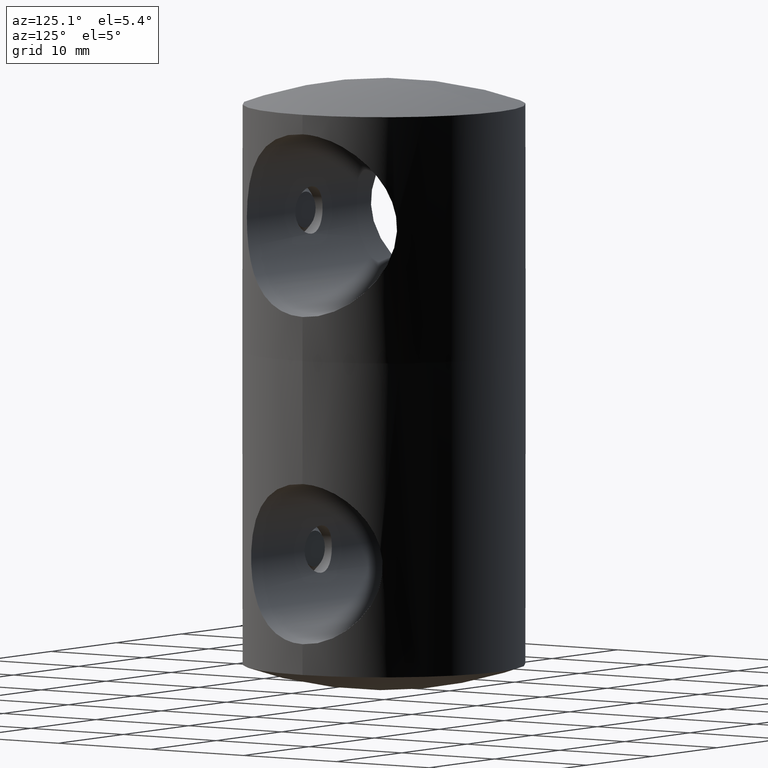
[diagram: clean part render]
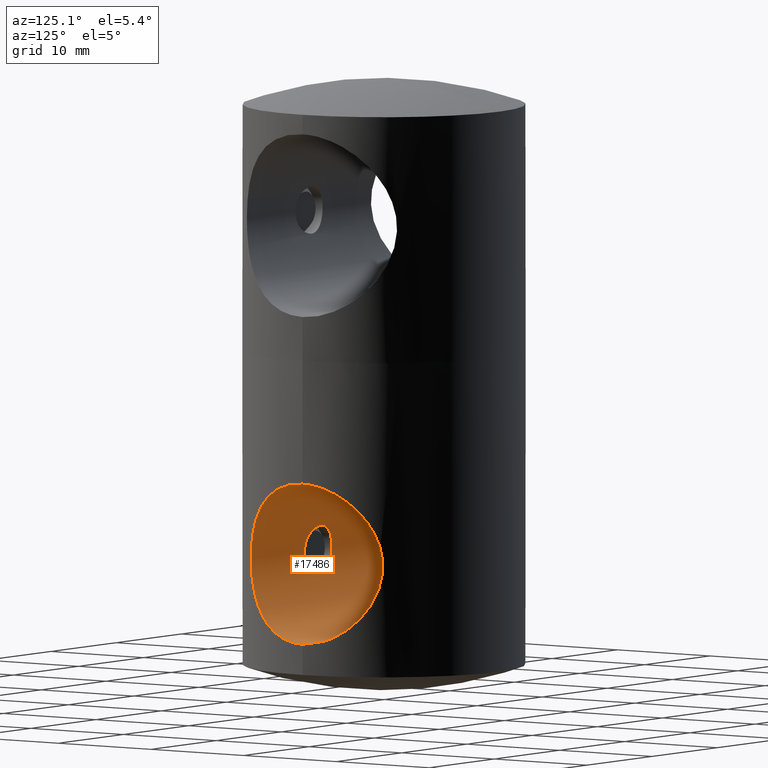
[diagram: same view with one face highlighted and labeled with its STEP entity id]
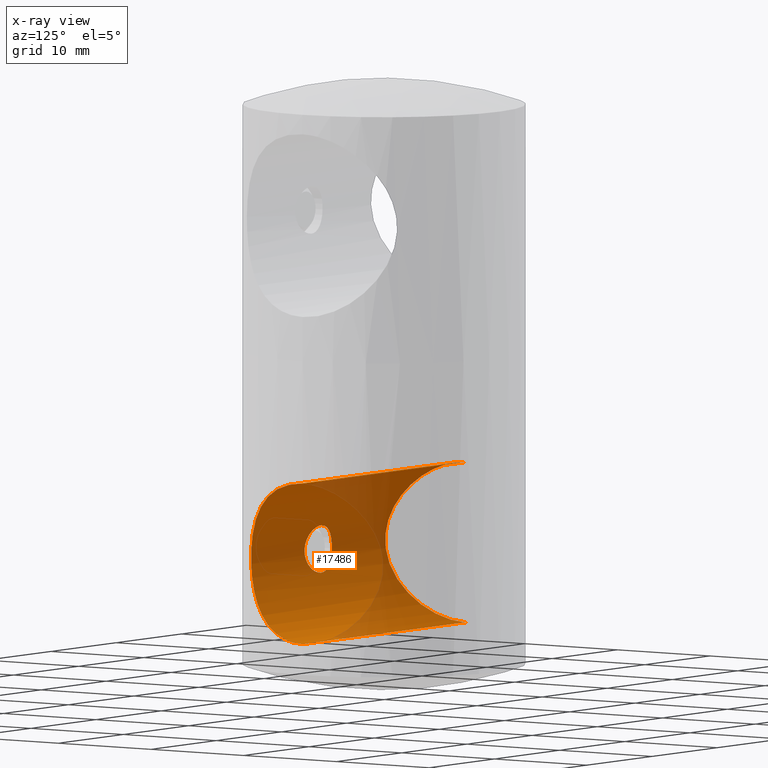
[diagram: x-ray of the same camera — body ghosted, the highlighted face saturated]
A machine part, auxiliary view. The second image highlights one B-rep face of the part: STEP entity #17486.
The next image is the same camera in x-ray: the body ghosted, the highlighted face saturated — about 30% of this face is hidden behind the body in this view.
In plain terms, the highlighted cylindrical surface (partial cylindrical patch) has radius 7.1 mm, axis along (-1, -0, 0).
Its self-contained STEP definition (entity closure, byte-faithful):
#394 = CARTESIAN_POINT ( 'NONE',  ( 1.281988807091904103, -6.901521267428415207, 4.668876199059269538 ) ) ;
#404 = EDGE_CURVE ( 'NONE', #6697, #6292, #17042, .T. ) ;
#415 = CARTESIAN_POINT ( 'NONE',  ( -10.54080125387373634, -6.722015453373489713, 0.6683817502012835421 ) ) ;
#478 = CARTESIAN_POINT ( 'NONE',  ( -12.47240342699863547, -0.9512168273055786605, -4.051728049087748751 ) ) ;
#538 = CARTESIAN_POINT ( 'NONE',  ( -12.36157828789706414, -1.869096526884924225, 9.853610966340577093 ) ) ;
#628 = CARTESIAN_POINT ( 'NONE',  ( 0.5480556957764938231, -6.803091638451528311, 5.031932424339646381 ) ) ;
#936 = CARTESIAN_POINT ( 'NONE',  ( -1.992182045552697289, -7.068674974145548795, 3.678561481748686468 ) ) ;
#1025 = CARTESIAN_POINT ( 'NONE',  ( 10.59351820108908093, -6.636142668883755036, 0.4652433916719400098 ) ) ;
#1094 = CARTESIAN_POINT ( 'NONE',  ( 11.16027666235574323, -5.637531711305975968, -1.340161849452324416 ) ) ;
#1269 = CARTESIAN_POINT ( 'NONE',  ( 10.88816703618159565, -6.146595381488632270, 6.582789047978076624 ) ) ;
#1444 = CARTESIAN_POINT ( 'NONE',  ( 0.9321274210667228610, -6.844930146303196850, 4.886774365685632837 ) ) ;
#1733 = CARTESIAN_POINT ( 'NONE',  ( -10.89076193942644544, -6.136548808116676135, 6.578493631343571124 ) ) ;
#1778 = CARTESIAN_POINT ( 'NONE',  ( 2.100059506846965629, -7.100017600615201374, 3.136954343613682195 ) ) ;
#1859 = CARTESIAN_POINT ( 'NONE',  ( -10.76464359171547258, -6.355184909898125234, 6.174030986768685558 ) ) ;
#1898 = CARTESIAN_POINT ( 'NONE',  ( 0.1395997681101468213, -6.782329983125267248, 0.9000000000000131228 ) ) ;
#2175 = FACE_OUTER_BOUND ( 'NONE', #3821, .T. ) ;
#2248 = CARTESIAN_POINT ( 'NONE',  ( -0.5469973674663455299, -6.803016253193344909, 0.9678171962360141434 ) ) ;
#2306 = CARTESIAN_POINT ( 'NONE',  ( -1.820735158076336679, -7.022085757748140367, 4.055216121672385654 ) ) ;
#2365 = CARTESIAN_POINT ( 'NONE',  ( 4.258140933517616797E-16, -6.782329983125269912, 0.9000000000000130118 ) ) ;
#2410 = CARTESIAN_POINT ( 'NONE',  ( 10.35379304955138480, -7.003725121456041869, 4.188724512186769111 ) ) ;
#2477 = CARTESIAN_POINT ( 'NONE',  ( 11.58512768093194367, -4.707102817139629636, 8.334627346252799995 ) ) ;
#2536 = CARTESIAN_POINT ( 'NONE',  ( 11.51408151635098598, -4.868944799639089993, -2.172524930702216306 ) ) ;
#2593 = CARTESIAN_POINT ( 'NONE',  ( 10.76119357562656198, -6.363243337331821792, 6.183007523073617229 ) ) ;
#2725 = CARTESIAN_POINT ( 'NONE',  ( 12.44547036346077640, -1.189197617727914880, -4.003660064757344372 ) ) ;
#2783 = CARTESIAN_POINT ( 'NONE',  ( 11.78780696279485340, -4.163804789402313133, -2.755402572058839983 ) ) ;
#2931 = AXIS2_PLACEMENT_3D ( 'NONE', #12430, #16759, #13945 ) ;
#3195 = CARTESIAN_POINT ( 'NONE',  ( -11.30314907400740054, -5.339918604441927563, -1.684778279553569513 ) ) ;
#3237 = CARTESIAN_POINT ( 'NONE',  ( 2.086198619596722814, -7.095883073133014918, 3.277004660160204530 ) ) ;
#3262 = CARTESIAN_POINT ( 'NONE',  ( -10.41557569167954433, -6.911509236011336377, 4.642112633211111117 ) ) ;
#3321 = CARTESIAN_POINT ( 'NONE',  ( -12.09474588327909217, -3.187496164584715519, -3.361299522317986899 ) ) ;
#3366 = CARTESIAN_POINT ( 'NONE',  ( 1.833046757503978830, -7.024930632959328847, 4.061312134530105311 ) ) ;
#3390 = CARTESIAN_POINT ( 'NONE',  ( -12.50000000000000178, -0.4805659640073316474, -4.099999999999998757 ) ) ;
#3405 = VERTEX_POINT ( 'NONE', #11887 ) ;
#3449 = CARTESIAN_POINT ( 'NONE',  ( -11.37402628047061626, -5.187679897919515781, -1.852757224968614835 ) ) ;
#3541 = VERTEX_POINT ( 'NONE', #7582 ) ;
#3587 = CARTESIAN_POINT ( 'NONE',  ( 1.055092020236857886, -6.862996406412092298, 4.820830551733999769 ) ) ;
#3592 = CARTESIAN_POINT ( 'NONE',  ( 2.572367778229198205E-16, -6.782329983125269912, 5.099999999999988987 ) ) ;
#3652 = CARTESIAN_POINT ( 'NONE',  ( -2.086030353088639711, -7.095833753745439232, 3.278057642428634733 ) ) ;
#3660 = DIRECTION ( 'NONE',  ( 1.000000000000000000, -0.000000000000000000, -0.000000000000000000 ) ) ;
#3710 = CARTESIAN_POINT ( 'NONE',  ( -2.032091325124188330, -7.080164488232665754, 3.547214339062039645 ) ) ;
#3821 = EDGE_LOOP ( 'NONE', ( #17231, #9303, #12486, #10499 ) ) ;
#3877 = CARTESIAN_POINT ( 'NONE',  ( 10.28797178943786861, -7.099833554373474520, 3.244276039956524471 ) ) ;
#3932 = CARTESIAN_POINT ( 'NONE',  ( 10.29656404782429391, -7.087426699821465448, 3.484288876311453897 ) ) ;
#4249 = CARTESIAN_POINT ( 'NONE',  ( 12.49299174562365344, -0.4811991486314979860, -4.087682115753313639 ) ) ;
#4768 = ORIENTED_EDGE ( 'NONE', *, *, #404, .T. ) ;
#4832 = CARTESIAN_POINT ( 'NONE',  ( -12.28868335539654311, -2.330508779459669721, -3.722722085639619038 ) ) ;
#4869 = CARTESIAN_POINT ( 'NONE',  ( 1.677740173551896197, -6.984228621925074876, 1.707972212363771725 ) ) ;
#4894 = CARTESIAN_POINT ( 'NONE',  ( -12.47236506100288267, -0.9511355239451575461, 10.05165719732110396 ) ) ;
#5086 = CARTESIAN_POINT ( 'NONE',  ( -1.389055288179732672, -6.922473353629668757, 1.419159496579968316 ) ) ;
#5105 = VECTOR ( 'NONE', #3660, 1000.000000000000000 ) ;
#5203 = CARTESIAN_POINT ( 'NONE',  ( -1.581386642541452225, -6.963606935089436512, 4.388520072631406421 ) ) ;
#5360 = CARTESIAN_POINT ( 'NONE',  ( 10.70346527864367125, -6.457309689604065817, 0.03916698245445875831 ) ) ;
#5425 = CARTESIAN_POINT ( 'NONE',  ( 11.72285358696202984, -4.357488413051601839, 8.624561647930455877 ) ) ;
#5543 = CARTESIAN_POINT ( 'NONE',  ( 11.37442896416548521, -5.186797260141186250, 7.853699686406227620 ) ) ;
#5670 = CARTESIAN_POINT ( 'NONE',  ( 12.49999999999999289, -0.2397798003476021289, -4.099999999999997868 ) ) ;
#6080 = CARTESIAN_POINT ( 'NONE',  ( -10.32144769786893690, -7.051980222211310156, 3.949499986322636769 ) ) ;
#6083 = B_SPLINE_CURVE_WITH_KNOTS ( 'NONE', 3,
 ( #11296, #9782, #14155, #16857, #9901, #17026, #16787, #5425, #2477, #5543, #15598, #15475, #6951, #1269, #2593, #18229, #7016, #2410, #12449, #3932, #3877, #13972, #13907, #15355, #6764, #9651, #1025, #5360, #8275, #18287, #9720, #1094, #11164, #2536, #15648, #11409, #2783, #14273, #9954, #7078, #11354, #17094, #12762, #2725, #12829, #4249, #5670, #18537 ),
 .UNSPECIFIED., .F., .F.,
 ( 4, 2, 2, 2, 2, 2, 2, 2, 2, 2, 2, 2, 2, 2, 2, 2, 2, 2, 2, 2, 2, 2, 2, 4 ),
 ( 0.02270891682282253146, 0.02412525192292015383, 0.02554158702301777967, 0.02695792212311540204, 0.02837425722321302787, 0.02908242477326184253, 0.02979059232331065718, 0.03120692742340828996, 0.03262326252350591926, 0.03333143007355473392, 0.03403959762360354857, 0.03545593272370117788, 0.03616410027374999947, 0.03687226782379881412, 0.03758043537384762878, 0.03828860292389645037, 0.03970493802399407968, 0.04041310557404290127, 0.04112127312409171592, 0.04253760822418935217, 0.04324577577423817376, 0.04395394332428698841, 0.04466211087433580307, 0.04537027842438462466 ),
 .UNSPECIFIED. ) ;
#6124 = CARTESIAN_POINT ( 'NONE',  ( 1.992223577268341650, -7.068688158173163316, 3.678348128692244146 ) ) ;
#6146 = CARTESIAN_POINT ( 'NONE',  ( -12.39391654726004610, -1.641484044854723878, 9.911632378378328667 ) ) ;
#6281 = CARTESIAN_POINT ( 'NONE',  ( -11.16254692090160106, -5.633085906007538668, 7.346039136242898948 ) ) ;
#6292 = VERTEX_POINT ( 'NONE', #6329 ) ;
#6328 = CARTESIAN_POINT ( 'NONE',  ( 0.2767002672360202031, -6.786639613669463778, 0.9137800000060853911 ) ) ;
#6329 = CARTESIAN_POINT ( 'NONE',  ( 4.258140933517616797E-16, -6.782329983125269912, 0.9000000000000130118 ) ) ;
#6350 = CARTESIAN_POINT ( 'NONE',  ( -10.32191336193627151, -7.051303418075906215, 2.045609312314089046 ) ) ;
#6394 = CARTESIAN_POINT ( 'NONE',  ( 2.086436316188144513, -7.095952606258267181, 2.724417482715823180 ) ) ;
#6483 = CARTESIAN_POINT ( 'NONE',  ( -1.833936259008382308, -7.025175697124266705, 1.940862697061279007 ) ) ;
#6601 = CARTESIAN_POINT ( 'NONE',  ( -0.6810386160973637137, -6.815278427084284552, 1.008773254844246958 ) ) ;
#6697 = VERTEX_POINT ( 'NONE', #12215 ) ;
#6764 = CARTESIAN_POINT ( 'NONE',  ( 10.45369377733143779, -6.853982002503377302, 1.132369744962723024 ) ) ;
#6856 = EDGE_CURVE ( 'NONE', #3541, #7894, #16755, .T. ) ;
#6951 = CARTESIAN_POINT ( 'NONE',  ( 11.09166530797232575, -5.765905370694642151, 7.149227433234639051 ) ) ;
#7016 = CARTESIAN_POINT ( 'NONE',  ( 10.44818337300496047, -6.862816372559792377, 4.879541861113493972 ) ) ;
#7078 = CARTESIAN_POINT ( 'NONE',  ( 12.23912789366317000, -2.549971958430642616, -3.630395001688509371 ) ) ;
#7493 = CARTESIAN_POINT ( 'NONE',  ( -12.49999999999999822, -0.4809610958689505278, 10.10000000000000320 ) ) ;
#7552 = CARTESIAN_POINT ( 'NONE',  ( -10.70503448327140994, -6.454712516760542584, 5.966505142884481749 ) ) ;
#7582 = CARTESIAN_POINT ( 'NONE',  ( -12.49999999999999822, 8.964901825575159134E-16, 10.10000000000000320 ) ) ;
#7590 = CARTESIAN_POINT ( 'NONE',  ( 1.678204323626109939, -6.984300454771114275, 4.291832388938202847 ) ) ;
#7614 = CARTESIAN_POINT ( 'NONE',  ( -12.28506725716602688, -2.319323625872139250, 9.714629030946417387 ) ) ;
#7740 = CARTESIAN_POINT ( 'NONE',  ( -10.45442333798881940, -6.852873825890775095, 4.871768109421389603 ) ) ;
#7776 = CARTESIAN_POINT ( 'NONE',  ( 0.6799541415999094118, -6.815162842084114381, 1.008374454452571456 ) ) ;
#7822 = LINE ( 'NONE', #10767, #5105 ) ;
#7894 = VERTEX_POINT ( 'NONE', #12594 ) ;
#8050 = CARTESIAN_POINT ( 'NONE',  ( -2.100011073309085319, -7.100003275204086250, 2.861761410671590067 ) ) ;
#8275 = CARTESIAN_POINT ( 'NONE',  ( 10.76299649604914599, -6.357972462635660627, -0.1684570197645891276 ) ) ;
#8949 = ORIENTED_EDGE ( 'NONE', *, *, #18257, .T. ) ;
#9059 = CARTESIAN_POINT ( 'NONE',  ( -11.16189758074910010, -5.629205280336353034, -1.332888891083549243 ) ) ;
#9118 = CARTESIAN_POINT ( 'NONE',  ( -11.58671775153814920, -4.703273353215211117, 8.338114052707290114 ) ) ;
#9183 = CARTESIAN_POINT ( 'NONE',  ( -12.24072011514203950, -2.542285523396220270, 9.633329130939637608 ) ) ;
#9303 = ORIENTED_EDGE ( 'NONE', *, *, #6856, .T. ) ;
#9377 = CARTESIAN_POINT ( 'NONE',  ( -0.9341590504404773121, -6.845207051184391212, 1.114225778169737557 ) ) ;
#9443 = CARTESIAN_POINT ( 'NONE',  ( -1.055170594633208170, -6.863006187222548959, 4.820798878250631248 ) ) ;
#9597 = CARTESIAN_POINT ( 'NONE',  ( 2.572367778229198205E-16, -6.782329983125269912, 5.099999999999988987 ) ) ;
#9651 = CARTESIAN_POINT ( 'NONE',  ( 10.54309940824726510, -6.715641276056546261, 0.6836938217289960651 ) ) ;
#9720 = CARTESIAN_POINT ( 'NONE',  ( 10.95590503741818544, -6.019886174600851625, -0.7713608437412844410 ) ) ;
#9775 = CARTESIAN_POINT ( 'NONE',  ( -12.49999999999999822, 2.604222703371427672E-15, 10.10000000000000142 ) ) ;
#9782 = CARTESIAN_POINT ( 'NONE',  ( 12.50000000000000000, -0.4799539051028655079, 10.10000000000000675 ) ) ;
#9813 = EDGE_CURVE ( 'NONE', #3405, #3541, #14210, .T. ) ;
#9901 = CARTESIAN_POINT ( 'NONE',  ( 12.28868556496928832, -2.330455522349837771, 9.722723993875808546 ) ) ;
#9954 = CARTESIAN_POINT ( 'NONE',  ( 12.09282248704221985, -3.195008394635596716, -3.357664730622600402 ) ) ;
#10371 = CARTESIAN_POINT ( 'NONE',  ( -12.49999999999999822, 1.674654898630422701E-15, -4.099999999999996980 ) ) ;
#10488 = CARTESIAN_POINT ( 'NONE',  ( -10.28795124725935750, -7.099863319915303173, 2.517279186960944326 ) ) ;
#10499 = ORIENTED_EDGE ( 'NONE', *, *, #15801, .F. ) ;
#10653 = CARTESIAN_POINT ( 'NONE',  ( 1.388981580019640116, -6.922458318254848031, 1.419092936362281732 ) ) ;
#10757 = CARTESIAN_POINT ( 'NONE',  ( -0.1395614199648952947, -6.782329983125268136, 0.9000000000000127898 ) ) ;
#10767 = CARTESIAN_POINT ( 'NONE',  ( -12.49999999999999822, 1.734723475976807094E-15, -4.099999999999996980 ) ) ;
#10822 = CARTESIAN_POINT ( 'NONE',  ( -1.054311539120120766, -6.862869708615346731, 1.178680987641753886 ) ) ;
#10883 = CARTESIAN_POINT ( 'NONE',  ( -1.991719944751145999, -7.068549439712469962, 2.320422801422865167 ) ) ;
#10935 = CARTESIAN_POINT ( 'NONE',  ( -0.5527069991460158427, -6.800171240276227991, 5.044411981709019166 ) ) ;
#11164 = CARTESIAN_POINT ( 'NONE',  ( 11.30260226496380938, -5.350137245759826854, -1.689624924682959994 ) ) ;
#11296 = CARTESIAN_POINT ( 'NONE',  ( 12.49999999999999822, 2.427298681491636240E-15, 10.10000000000000320 ) ) ;
#11354 = CARTESIAN_POINT ( 'NONE',  ( 12.28355408712935493, -2.327268730588583079, -3.711861126518972487 ) ) ;
#11409 = CARTESIAN_POINT ( 'NONE',  ( 11.72154789661120056, -4.346392963122590380, -2.618830262060698910 ) ) ;
#11855 = CARTESIAN_POINT ( 'NONE',  ( -11.72326304938611763, -4.356324323330960091, -2.625398339974434947 ) ) ;
#11887 = CARTESIAN_POINT ( 'NONE',  ( -12.49999999999999822, 1.674654898630422701E-15, -4.099999999999996980 ) ) ;
#11920 = CARTESIAN_POINT ( 'NONE',  ( -10.95760019053421530, -6.016811922509468502, 6.776294816179190050 ) ) ;
#11959 = CARTESIAN_POINT ( 'NONE',  ( 2.032208412861615798, -7.080197590608633185, 2.452924875327062715 ) ) ;
#12013 = CARTESIAN_POINT ( 'NONE',  ( 4.258140933517616797E-16, -6.782329983125269912, 0.9000000000000130118 ) ) ;
#12033 = CARTESIAN_POINT ( 'NONE',  ( -10.88734605281069001, -6.148078400945674815, -0.5803858894587281547 ) ) ;
#12215 = CARTESIAN_POINT ( 'NONE',  ( 2.572367778229198205E-16, -6.782329983125269912, 5.099999999999988987 ) ) ;
#12245 = CARTESIAN_POINT ( 'NONE',  ( -1.669146556953584604, -6.984315435452783660, 4.281603429576624542 ) ) ;
#12430 = CARTESIAN_POINT ( 'NONE',  ( -12.49999999999999822, 1.734723475976807094E-15, 3.000000000000002665 ) ) ;
#12449 = CARTESIAN_POINT ( 'NONE',  ( 10.32948239257338408, -7.039363743819929908, 3.955777705983288151 ) ) ;
#12486 = ORIENTED_EDGE ( 'NONE', *, *, #13087, .T. ) ;
#12548 = CARTESIAN_POINT ( 'NONE',  ( 0.2769326297696691475, -6.786632631646359215, 5.086246088390508291 ) ) ;
#12594 = CARTESIAN_POINT ( 'NONE',  ( 12.49999999999999822, 2.427298681491636240E-15, 10.10000000000000320 ) ) ;
#12762 = CARTESIAN_POINT ( 'NONE',  ( 12.39271462522872547, -1.650620416519905875, -3.909478816615207020 ) ) ;
#12829 = CARTESIAN_POINT ( 'NONE',  ( 12.46569958972208347, -0.9553685758214875978, -4.039464559108589370 ) ) ;
#13087 = EDGE_CURVE ( 'NONE', #7894, #16380, #6083, .T. ) ;
#13113 = CARTESIAN_POINT ( 'NONE',  ( 0.1375483942688937311, -6.782329983125271688, 5.099999999999988987 ) ) ;
#13234 = CARTESIAN_POINT ( 'NONE',  ( -11.98032867455219552, -3.589032839019615118, 9.143070526304031276 ) ) ;
#13362 = CARTESIAN_POINT ( 'NONE',  ( -12.09508519001899174, -3.186329035902474072, 9.361948714217559697 ) ) ;
#13413 = CARTESIAN_POINT ( 'NONE',  ( -12.36744064349518268, -1.874052461373486134, -3.864372462422195564 ) ) ;
#13458 = CARTESIAN_POINT ( 'NONE',  ( 0.9338677365261154328, -6.845160033101458374, 1.114051697677916009 ) ) ;
#13487 = CARTESIAN_POINT ( 'NONE',  ( -10.76036465851576018, -6.364631587517303402, -0.1801572560745127449 ) ) ;
#13534 = CARTESIAN_POINT ( 'NONE',  ( 1.833939604744975416, -7.025179057592409571, 1.941027426218128626 ) ) ;
#13628 = CARTESIAN_POINT ( 'NONE',  ( -1.677758846562766637, -6.984234081099411462, 1.708005256870581690 ) ) ;
#13692 = CARTESIAN_POINT ( 'NONE',  ( -1.387567061767733589, -6.922165859333327731, 4.582222915523000317 ) ) ;
#13759 = CARTESIAN_POINT ( 'NONE',  ( -2.099988913232677223, -7.099996720815309637, 3.138574816976698934 ) ) ;
#13901 = DIRECTION ( 'NONE',  ( 1.000000000000000000, -0.000000000000000000, -0.000000000000000000 ) ) ;
#13907 = CARTESIAN_POINT ( 'NONE',  ( 10.32092856185195373, -7.052734923715453519, 2.055955103283547469 ) ) ;
#13945 = DIRECTION ( 'NONE',  ( 0.000000000000000000, 0.000000000000000000, -1.000000000000000000 ) ) ;
#13972 = CARTESIAN_POINT ( 'NONE',  ( 10.28763066194222375, -7.100327846217659555, 2.526108018380252229 ) ) ;
#14155 = CARTESIAN_POINT ( 'NONE',  ( 12.47241159761730955, -0.9511822130778515572, 10.05174284442395205 ) ) ;
#14210 = B_SPLINE_CURVE_WITH_KNOTS ( 'NONE', 3,
 ( #10371, #3390, #478, #13413, #4832, #3321, #17746, #11855, #14936, #3449, #3195, #9059, #16117, #12033, #13487, #415, #17672, #6350, #10488, #14678, #6080, #3262, #7740, #14873, #14736, #7552, #1859, #1733, #11920, #6281, #17557, #9118, #16304, #13234, #13362, #9183, #7614, #538, #6146, #4894, #7493, #17495 ),
 .UNSPECIFIED., .F., .F.,
 ( 4, 2, 2, 2, 2, 2, 2, 2, 2, 2, 2, 2, 2, 2, 2, 2, 2, 2, 2, 2, 4 ),
 ( 5.821725085930358525E-20, 0.001419307301426409517, 0.002838614602852819035, 0.004257921904279229203, 0.005677229205705638070, 0.006386882856418842069, 0.007096536507132045202, 0.008515843808558454936, 0.009935151109984864670, 0.01135445841141127440, 0.01277376571283768414, 0.01348341936355088901, 0.01419307301426409214, 0.01490272666497729874, 0.01561238031569050361, 0.01703168761711690987, 0.01845099491854331614, 0.01987030221996972240, 0.02057995587068292206, 0.02128960952139612520, 0.02270891682282252799 ),
 .UNSPECIFIED. ) ;
#14273 = CARTESIAN_POINT ( 'NONE',  ( 11.97780161950914035, -3.597349250370591278, -3.138142612688545885 ) ) ;
#14313 = EDGE_LOOP ( 'NONE', ( #8949, #4768 ) ) ;
#14678 = CARTESIAN_POINT ( 'NONE',  ( -10.28776298659891886, -7.100136108486190700, 3.478691744017389453 ) ) ;
#14736 = CARTESIAN_POINT ( 'NONE',  ( -10.59483006856255827, -6.634052515645168846, 5.540238897514835337 ) ) ;
#14742 = VECTOR ( 'NONE', #13901, 1000.000000000000000 ) ;
#14850 = CARTESIAN_POINT ( 'NONE',  ( 2.032173545629058609, -7.080187937245943530, 3.547016400671096914 ) ) ;
#14873 = CARTESIAN_POINT ( 'NONE',  ( -10.54423150536102582, -6.713868405384193494, 5.321500929185626561 ) ) ;
#14936 = CARTESIAN_POINT ( 'NONE',  ( -11.58475042720364101, -4.708029709747251879, -2.333812696673055243 ) ) ;
#14980 = CARTESIAN_POINT ( 'NONE',  ( 1.991452454246864345, -7.068474690969160257, 2.319701191429316189 ) ) ;
#15074 = CARTESIAN_POINT ( 'NONE',  ( 12.49999999999999822, 7.859759060395799831E-16, -4.099999999999996980 ) ) ;
#15141 = CARTESIAN_POINT ( 'NONE',  ( -0.2768638659810017111, -6.786639641345609597, 0.9137786628348323337 ) ) ;
#15197 = CARTESIAN_POINT ( 'NONE',  ( -0.2750212192746860351, -6.782329983125272577, 5.099999999999989875 ) ) ;
#15254 = CARTESIAN_POINT ( 'NONE',  ( -1.885639803097608036, -7.039390176323162329, 3.934664389023950992 ) ) ;
#15355 = CARTESIAN_POINT ( 'NONE',  ( 10.41480574227799316, -6.912668111617621847, 1.362748569575269020 ) ) ;
#15441 = FACE_BOUND ( 'NONE', #14313, .T. ) ;
#15475 = CARTESIAN_POINT ( 'NONE',  ( 11.16205403663977513, -5.628902018887850467, 7.333299576644263240 ) ) ;
#15598 = CARTESIAN_POINT ( 'NONE',  ( 11.30350596078847047, -5.339170464550239359, 7.685646370529839011 ) ) ;
#15648 = CARTESIAN_POINT ( 'NONE',  ( 11.58459427111668383, -4.699254457469034030, -2.327231255322795178 ) ) ;
#15801 = EDGE_CURVE ( 'NONE', #3405, #16380, #7822, .T. ) ;
#16117 = CARTESIAN_POINT ( 'NONE',  ( -11.09131400361183672, -5.766588826831743120, -1.148308219944818465 ) ) ;
#16186 = B_SPLINE_CURVE_WITH_KNOTS ( 'NONE', 3,
 ( #12013, #1898, #6328, #16222, #7776, #13458, #17646, #17790, #10653, #4869, #13534, #14980, #11959, #6394, #16409, #1778, #3237, #14850, #6124, #3366, #7590, #17589, #394, #3587, #1444, #17382, #628, #12548, #13113, #9597 ),
 .UNSPECIFIED., .F., .F.,
 ( 4, 2, 2, 2, 2, 2, 2, 2, 2, 2, 2, 2, 2, 2, 4 ),
 ( 6.256596034050254909E-19, 0.0004126616775736098889, 0.0008253233551472191273, 0.001237985032720828691, 0.001650646710294438038, 0.002475970065441656948, 0.002888631743015267379, 0.003301293420588877377, 0.003713955098162486940, 0.004126616775736097371, 0.004951940130883318233, 0.005364601808456927363, 0.005777263486030537361, 0.006189925163604145623, 0.006602586841177754753 ),
 .UNSPECIFIED. ) ;
#16222 = CARTESIAN_POINT ( 'NONE',  ( 0.5461615517608097159, -6.802955728840291982, 0.9676160585063362518 ) ) ;
#16304 = CARTESIAN_POINT ( 'NONE',  ( -11.72684879340800634, -4.346314444032334912, 8.632763350639043765 ) ) ;
#16380 = VERTEX_POINT ( 'NONE', #15074 ) ;
#16409 = CARTESIAN_POINT ( 'NONE',  ( 2.099940099310699360, -7.099982282896228902, 2.861226789905455536 ) ) ;
#16498 = CARTESIAN_POINT ( 'NONE',  ( -1.282045992956449831, -6.901525175203227391, 1.331127974276109072 ) ) ;
#16755 = LINE ( 'NONE', #9775, #14742 ) ;
#16759 = DIRECTION ( 'NONE',  ( 1.000000000000000000, -0.000000000000000000, -0.000000000000000000 ) ) ;
#16787 = CARTESIAN_POINT ( 'NONE',  ( 11.97960984808972462, -3.591928364928693718, 9.141779027486242271 ) ) ;
#16857 = CARTESIAN_POINT ( 'NONE',  ( 12.36740688548127309, -1.874312031601151451, 9.864311994260983596 ) ) ;
#17026 = CARTESIAN_POINT ( 'NONE',  ( 12.09486426576825302, -3.187016512190909534, 9.361522348503292790 ) ) ;
#17042 = B_SPLINE_CURVE_WITH_KNOTS ( 'NONE', 3,
 ( #3592, #15197, #10935, #17883, #9443, #18066, #13692, #5203, #12245, #2306, #15254, #936, #3710, #3652, #13759, #8050, #18124, #18016, #10883, #6483, #13628, #5086, #16498, #10822, #9377, #6601, #2248, #15141, #10757, #2365 ),
 .UNSPECIFIED., .F., .F.,
 ( 4, 2, 2, 2, 2, 2, 2, 2, 2, 2, 2, 2, 2, 2, 4 ),
 ( 0.006602586841177754753, 0.007427683479473425401, 0.007840231798621262460, 0.008252780117769097784, 0.008665328436916933108, 0.009077876756064770167, 0.009490425075212607225, 0.009902973394360442549, 0.01031552171350827787, 0.01072807003265611493, 0.01155316667095178731, 0.01196571499009962264, 0.01237826330924745796, 0.01279081162839529329, 0.01320335994754312861 ),
 .UNSPECIFIED. ) ;
#17094 = CARTESIAN_POINT ( 'NONE',  ( 12.36018587133492730, -1.878213508060250891, -3.851100170351614338 ) ) ;
#17231 = ORIENTED_EDGE ( 'NONE', *, *, #9813, .T. ) ;
#17382 = CARTESIAN_POINT ( 'NONE',  ( 0.6790217481232292407, -6.815077234565293018, 4.991910766497483998 ) ) ;
#17486 = ADVANCED_FACE ( 'NONE', ( #15441, #2175 ), #18352, .F. ) ;
#17495 = CARTESIAN_POINT ( 'NONE',  ( -12.49999999999999822, 8.964901825575159134E-16, 10.10000000000000320 ) ) ;
#17557 = CARTESIAN_POINT ( 'NONE',  ( -11.30501070537478014, -5.345048310374294509, 7.695391403763929716 ) ) ;
#17589 = CARTESIAN_POINT ( 'NONE',  ( 1.387200828123573482, -6.922091223771640323, 4.582553010388600079 ) ) ;
#17646 = CARTESIAN_POINT ( 'NONE',  ( 1.054169921261187692, -6.862848411314415920, 1.178602302935119139 ) ) ;
#17672 = CARTESIAN_POINT ( 'NONE',  ( -10.44773442666880392, -6.863499158220034424, 1.122735824764288015 ) ) ;
#17746 = CARTESIAN_POINT ( 'NONE',  ( -11.97955674781280244, -3.592029824636712387, -3.141660185353178036 ) ) ;
#17790 = CARTESIAN_POINT ( 'NONE',  ( 1.281846641826827948, -6.901488600798505679, 1.330978436148185784 ) ) ;
#17883 = CARTESIAN_POINT ( 'NONE',  ( -0.9323213315120980615, -6.844956832057906837, 4.886677841941378553 ) ) ;
#18016 = CARTESIAN_POINT ( 'NONE',  ( -2.032568200794607538, -7.080301436022129913, 2.454388903066054617 ) ) ;
#18066 = CARTESIAN_POINT ( 'NONE',  ( -1.282354903904662891, -6.901586994427059807, 4.668610032107267216 ) ) ;
#18124 = CARTESIAN_POINT ( 'NONE',  ( -2.086471489215560915, -7.095963515222228679, 2.724933308687699007 ) ) ;
#18229 = CARTESIAN_POINT ( 'NONE',  ( 10.54124068422388660, -6.721338987096793893, 5.333667688976675869 ) ) ;
#18257 = EDGE_CURVE ( 'NONE', #6292, #6697, #16186, .T. ) ;
#18287 = CARTESIAN_POINT ( 'NONE',  ( 10.88909560909868723, -6.139503581357961259, -0.5734338522241678726 ) ) ;
#18352 = CYLINDRICAL_SURFACE ( 'NONE', #2931, 7.099999999999999645 ) ;
#18537 = CARTESIAN_POINT ( 'NONE',  ( 12.49999999999999822, 7.859759060395799831E-16, -4.099999999999996980 ) ) ;